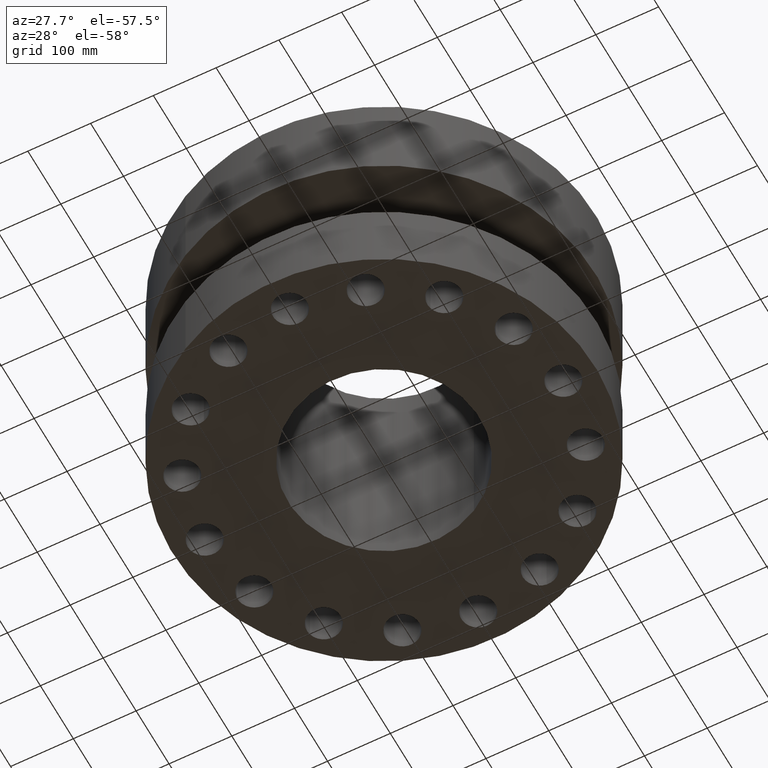
[diagram: clean part render]
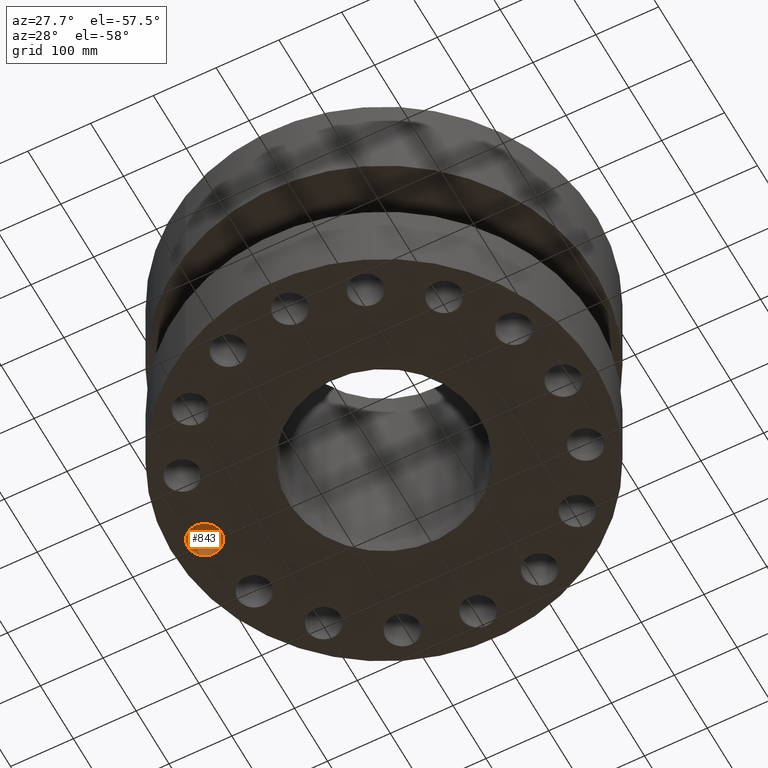
[diagram: same view with one face highlighted and labeled with its STEP entity id]
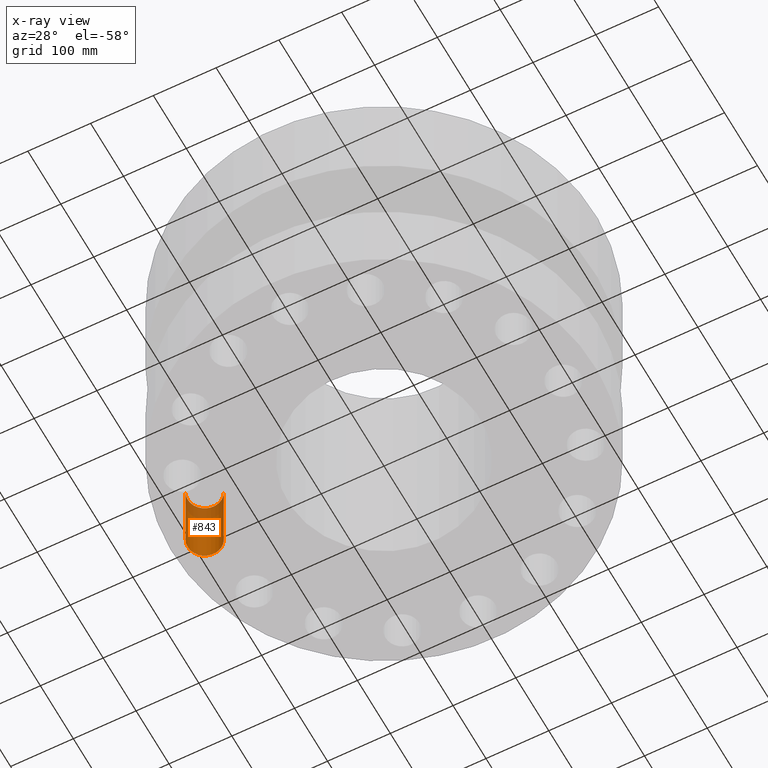
[diagram: x-ray of the same camera — body ghosted, the highlighted face saturated]
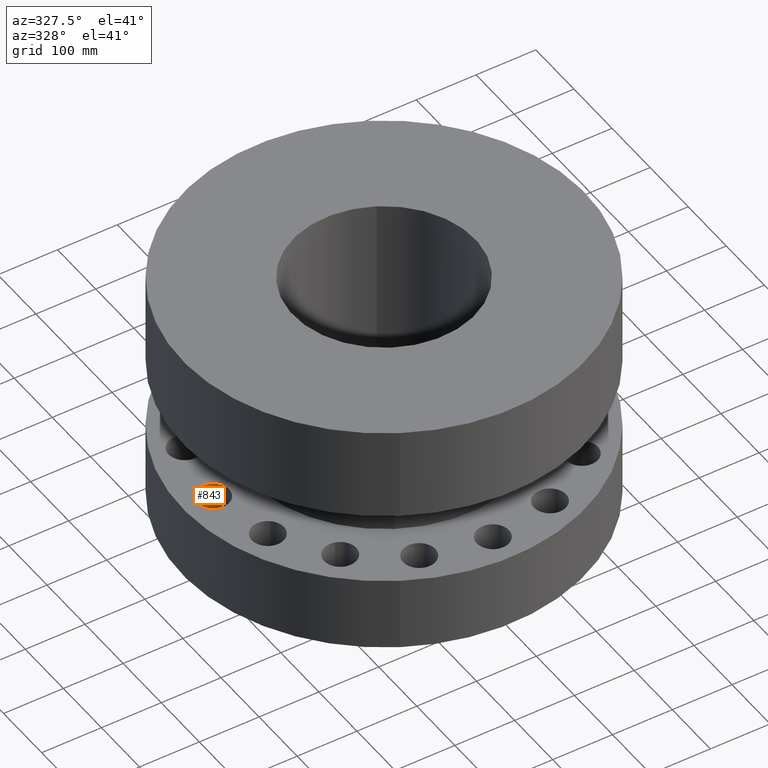
[diagram: same view with one face highlighted and labeled with its STEP entity id]
A machine part, auxiliary view. The second image highlights one B-rep face of the part: STEP entity #843.
The next image is the same camera in x-ray: the body ghosted, the highlighted face saturated — about 24% of this face is hidden behind the body in this view.
A second angle (auxiliary view) of the same face is appended — the face is thin or edge-on in the first view.
In plain terms, the highlighted cylindrical surface (edge-blend (fillet) strip) has radius 26.924 mm, axis along (0, 0, 1).
Its self-contained STEP definition (entity closure, byte-faithful):
#262=AXIS2_PLACEMENT_3D('Circle Axis2P3D',#260,#261,$) ;
#816=AXIS2_PLACEMENT_3D('Cylinder Axis2P3D',#813,#814,#815) ;
#827=AXIS2_PLACEMENT_3D('Circle Axis2P3D',#825,#826,$) ;
#255=CARTESIAN_POINT('Vertex',(-10.3197624844,0.508191070922,4.88000000002)) ;
#257=CARTESIAN_POINT('Vertex',(-12.1802375157,-0.508191070922,4.88000000002)) ;
#260=CARTESIAN_POINT('Axis2P3D Location',(-11.25,0.,4.88000000002)) ;
#813=CARTESIAN_POINT('Axis2P3D Location',(-11.25,-1.37772764905E-015,0.00393700787402)) ;
#818=CARTESIAN_POINT('Line Origine',(-12.1802375157,-0.508191070922,2.44000000001)) ;
#822=CARTESIAN_POINT('Vertex',(-12.1802375157,-0.508191070922,2.2401153548E-016)) ;
#825=CARTESIAN_POINT('Axis2P3D Location',(-11.25,-1.37772764905E-015,0.)) ;
#829=CARTESIAN_POINT('Vertex',(-10.3197624844,0.508191070922,2.2401153548E-016)) ;
#832=CARTESIAN_POINT('Line Origine',(-10.3197624844,0.508191070922,2.44000000001)) ;
#261=DIRECTION('Axis2P3D Direction',(0.,0.,-0.0393700787402)) ;
#814=DIRECTION('Axis2P3D Direction',(0.,0.,0.0393700787402)) ;
#815=DIRECTION('Axis2P3D XDirection',(-0.0345504945626,-0.0188750212049,0.)) ;
#819=DIRECTION('Vector Direction',(0.,0.,0.0393700787402)) ;
#826=DIRECTION('Axis2P3D Direction',(0.,0.,0.0393700787402)) ;
#833=DIRECTION('Vector Direction',(0.,0.,0.0393700787402)) ;
#820=VECTOR('Line Direction',#819,0.0393700787402) ;
#834=VECTOR('Line Direction',#833,0.0393700787402) ;
#838=ORIENTED_EDGE('',*,*,#824,.T.) ;
#839=ORIENTED_EDGE('',*,*,#831,.T.) ;
#840=ORIENTED_EDGE('',*,*,#836,.F.) ;
#841=ORIENTED_EDGE('',*,*,#264,.F.) ;
#843=ADVANCED_FACE('PartBody',(#842),#817,.F.) ;
#263=CIRCLE('generated circle',#262,1.06) ;
#828=CIRCLE('generated circle',#827,1.06) ;
#817=CYLINDRICAL_SURFACE('generated cylinder',#816,1.06) ;
#264=EDGE_CURVE('',#258,#256,#263,.T.) ;
#824=EDGE_CURVE('',#258,#823,#821,.F.) ;
#831=EDGE_CURVE('',#823,#830,#828,.F.) ;
#836=EDGE_CURVE('',#256,#830,#835,.F.) ;
#837=EDGE_LOOP('',(#838,#839,#840,#841)) ;
#842=FACE_OUTER_BOUND('',#837,.T.) ;
#821=LINE('Line',#818,#820) ;
#835=LINE('Line',#832,#834) ;
#256=VERTEX_POINT('',#255) ;
#258=VERTEX_POINT('',#257) ;
#823=VERTEX_POINT('',#822) ;
#830=VERTEX_POINT('',#829) ;